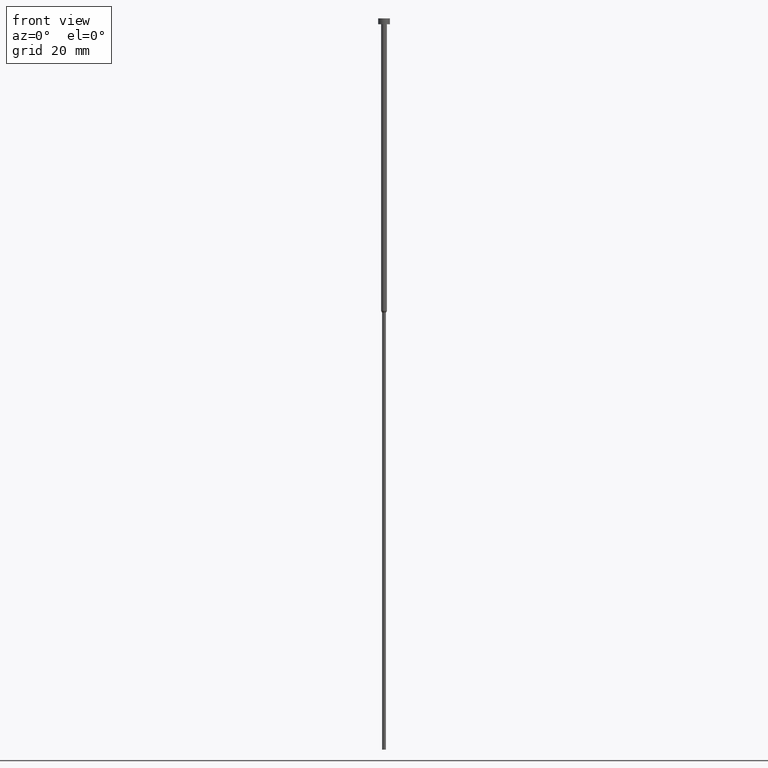
[diagram: clean part render]
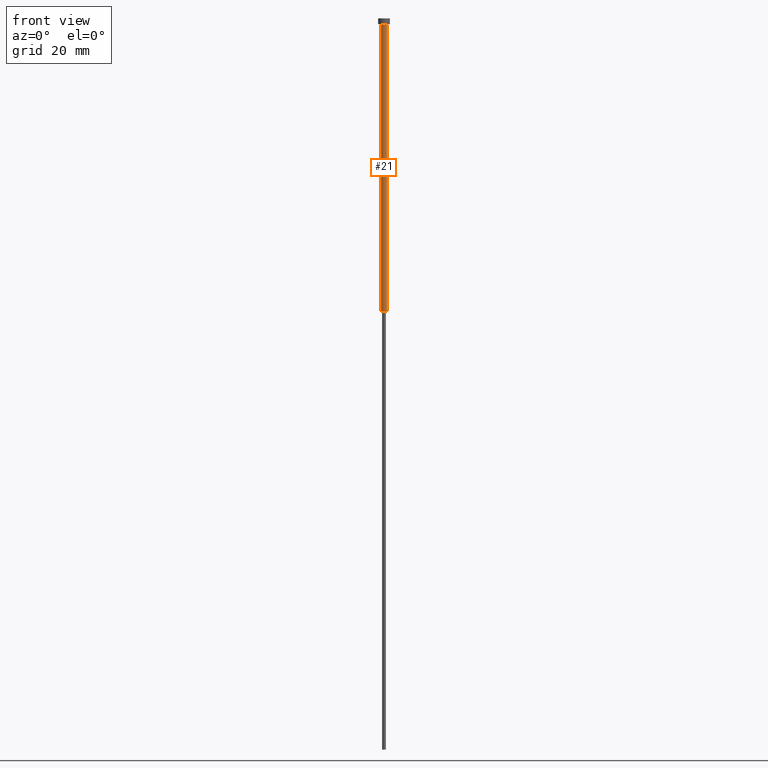
[diagram: same view with one face highlighted and labeled with its STEP entity id]
A machine part, front view. The second image highlights one B-rep face of the part: STEP entity #21.
In plain terms, the highlighted cylindrical surface (edge-blend (fillet) strip) has radius 1 mm, axis along (-0, -0, 1).
Its self-contained STEP definition (entity closure, byte-faithful):
#5 = EDGE_CURVE ( 'NONE', #281, #26, #318, .T. ) ;
#11 = ORIENTED_EDGE ( 'NONE', *, *, #116, .F. ) ;
#19 = CARTESIAN_POINT ( 'NONE',  ( 0.000000000000000000, 0.000000000000000000, 0.000000000000000000 ) ) ;
#21 = ADVANCED_FACE ( 'NONE', ( #199 ), #169, .T. ) ;
#26 = VERTEX_POINT ( 'NONE', #326 ) ;
#37 = VECTOR ( 'NONE', #137, 1000.000000000000000 ) ;
#44 = DIRECTION ( 'NONE',  ( 1.000000000000000000, 0.000000000000000000, 0.000000000000000000 ) ) ;
#53 = DIRECTION ( 'NONE',  ( 1.000000000000000000, 0.000000000000000000, 0.000000000000000000 ) ) ;
#60 = ORIENTED_EDGE ( 'NONE', *, *, #154, .F. ) ;
#69 = ORIENTED_EDGE ( 'NONE', *, *, #208, .T. ) ;
#102 = CIRCLE ( 'NONE', #204, 1.000000000000003553 ) ;
#108 = LINE ( 'NONE', #276, #37 ) ;
#109 = DIRECTION ( 'NONE',  ( -0.000000000000000000, -0.000000000000000000, 1.000000000000000000 ) ) ;
#116 = EDGE_CURVE ( 'NONE', #182, #127, #102, .T. ) ;
#127 = VERTEX_POINT ( 'NONE', #272 ) ;
#134 = CARTESIAN_POINT ( 'NONE',  ( 0.000000000000000000, 0.000000000000000000, -2.000000000000000444 ) ) ;
#137 = DIRECTION ( 'NONE',  ( -0.000000000000000000, -0.000000000000000000, 1.000000000000000000 ) ) ;
#140 = CARTESIAN_POINT ( 'NONE',  ( -1.000000000000003109, 1.224646799147356905E-16, -100.0000000000000000 ) ) ;
#147 = ORIENTED_EDGE ( 'NONE', *, *, #5, .T. ) ;
#152 = AXIS2_PLACEMENT_3D ( 'NONE', #294, #313, #44 ) ;
#154 = EDGE_CURVE ( 'NONE', #281, #182, #248, .T. ) ;
#159 = VECTOR ( 'NONE', #109, 1000.000000000000000 ) ;
#167 = AXIS2_PLACEMENT_3D ( 'NONE', #19, #322, #193 ) ;
#169 = CYLINDRICAL_SURFACE ( 'NONE', #167, 1.000000000000003331 ) ;
#182 = VERTEX_POINT ( 'NONE', #223 ) ;
#193 = DIRECTION ( 'NONE',  ( 1.000000000000000000, 0.000000000000000000, 0.000000000000000000 ) ) ;
#196 = DIRECTION ( 'NONE',  ( -0.000000000000000000, -0.000000000000000000, 1.000000000000000000 ) ) ;
#199 = FACE_OUTER_BOUND ( 'NONE', #303, .T. ) ;
#204 = AXIS2_PLACEMENT_3D ( 'NONE', #134, #196, #53 ) ;
#208 = EDGE_CURVE ( 'NONE', #26, #127, #108, .T. ) ;
#223 = CARTESIAN_POINT ( 'NONE',  ( -1.000000000000003553, 1.224646799147357398E-16, -2.000000000000000444 ) ) ;
#248 = LINE ( 'NONE', #347, #159 ) ;
#272 = CARTESIAN_POINT ( 'NONE',  ( 1.000000000000003553, 0.000000000000000000, -2.000000000000000444 ) ) ;
#276 = CARTESIAN_POINT ( 'NONE',  ( 1.000000000000003331, 0.000000000000000000, 0.000000000000000000 ) ) ;
#281 = VERTEX_POINT ( 'NONE', #140 ) ;
#294 = CARTESIAN_POINT ( 'NONE',  ( 0.000000000000000000, 0.000000000000000000, -100.0000000000000000 ) ) ;
#303 = EDGE_LOOP ( 'NONE', ( #60, #147, #69, #11 ) ) ;
#313 = DIRECTION ( 'NONE',  ( -0.000000000000000000, -0.000000000000000000, 1.000000000000000000 ) ) ;
#318 = CIRCLE ( 'NONE', #152, 1.000000000000003109 ) ;
#322 = DIRECTION ( 'NONE',  ( -0.000000000000000000, -0.000000000000000000, 1.000000000000000000 ) ) ;
#326 = CARTESIAN_POINT ( 'NONE',  ( 1.000000000000003109, 0.000000000000000000, -100.0000000000000000 ) ) ;
#347 = CARTESIAN_POINT ( 'NONE',  ( -1.000000000000003331, 1.224646799147357151E-16, 0.000000000000000000 ) ) ;